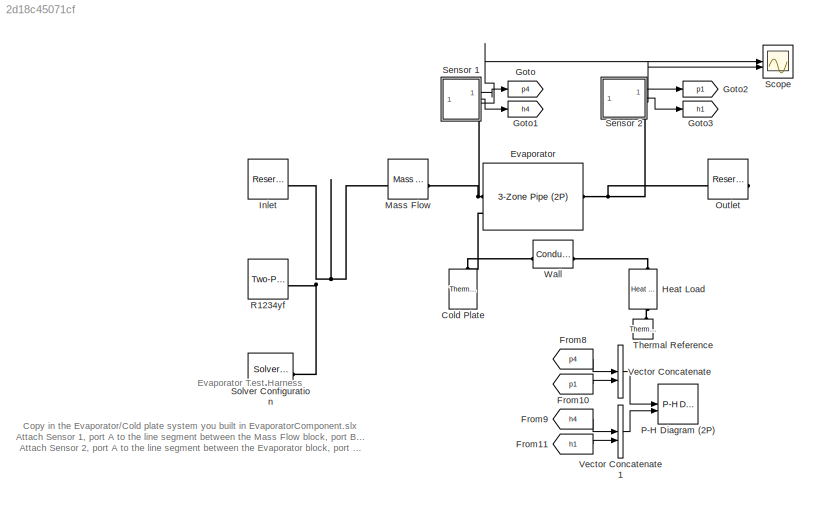
MODEL slx_2d18c45071cf
KIND model
CONFIG AbsTol = 1e-3
CONFIG EnableMultiTasking = off
CONFIG FixedStep = auto
CONFIG MaxStep = auto
CONFIG MinStep = auto
CONFIG RelTol = 1e-3
CONFIG SampleTimeConstraint = Unconstrained
CONFIG SolverName = VariableStepAuto
CONFIG StartTime = 0.0
CONFIG StopTime = 3600
WORKSPACE source: MATLAB code (in-file)
WORKSPACE code: evaporatorParams
BLOCK [Reference] Cold Plate  REF=fl_lib/Thermal/Thermal Elements/Thermal Mass
  NameLocation = right
  SourceBlock = fl_lib/Thermal/Thermal Elements/Thermal Mass
  SourceType = Thermal Mass
BLOCK [Reference] Evaporator  REF=SimscapeFluids_lib/Two-Phase Fluid/Pipes & Fittings/3-Zone Pipe (2P)
  NameLocation = top
  SourceBlock = SimscapeFluids_lib/Two-Phase Fluid/Pipes & Fittings/3-Zone Pipe (2P)
  SourceType = 3-Zone Pipe (2P)
BLOCK [From] From10
  GotoTag = p1
BLOCK [From] From11
  GotoTag = h1
BLOCK [From] From8
  GotoTag = p4
BLOCK [From] From9
  GotoTag = h4
BLOCK [Goto] Goto
  GotoTag = p4
BLOCK [Goto] Goto1
  GotoTag = h4
BLOCK [Goto] Goto2
  GotoTag = p1
BLOCK [Goto] Goto3
  GotoTag = h1
BLOCK [Reference] Heat Load  REF=fl_lib/Thermal/Thermal Sources/Heat Flow Rate
Source
  NameLocation = left
  SourceBlock = fl_lib/Thermal/Thermal Sources/Heat Flow Rate\nSource
  SourceType = Heat Flow Rate\nSource
BLOCK [Reference] Inlet  REF=fl_lib/Two-Phase Fluid/Elements/Reservoir (2P)
  SourceBlock = fl_lib/Two-Phase Fluid/Elements/Reservoir (2P)
  SourceType = Reservoir (2P)
BLOCK [Reference] Mass Flow  REF=fl_lib/Two-Phase Fluid/Sources/Mass Flow Rate
Source (2P)
  SourceBlock = fl_lib/Two-Phase Fluid/Sources/Mass Flow Rate\nSource (2P)
  SourceType = Mass Flow Rate\nSource (2P)
BLOCK [Reference] Outlet  REF=fl_lib/Two-Phase Fluid/Elements/Reservoir (2P)
  SourceBlock = fl_lib/Two-Phase Fluid/Elements/Reservoir (2P)
  SourceType = Reservoir (2P)
BLOCK [Reference] P-H Diagram (2P)  REF=SimscapeFluids_lib/Two-Phase Fluid/Utilities/P-H Diagram (2P)
  NameLocation = right
  SourceBlock = SimscapeFluids_lib/Two-Phase Fluid/Utilities/P-H Diagram (2P)
  SourceType = P-H Diagram (2P)
  UserDataPersistent = on
BLOCK [Reference] R1234yf  REF=SimscapeFluids_lib/Two-Phase Fluid/Utilities/Two-Phase Fluid
Predefined
Properties (2P)
  NameLocation = top
  SourceBlock = SimscapeFluids_lib/Two-Phase Fluid/Utilities/Two-Phase Fluid\nPredefined\nProperties (2P)
  SourceType = Two-Phase Fluid\nPredefined\nProperties (2P)
BLOCK [Scope] Scope
  Floating = off
  NumInputPorts = 2
  ScopeSpecificationString = Simulink.scopes.TimeScopeBlockCfg('CurrentConfiguration', extmgr.ConfigurationSet(extmgr.Configuration('Core','General UI',true),extmgr.Configuration('Core','Source UI',true),extmgr.Configuration('Sources','WiredSimulink',true),extmgr.Configuration('Visuals','Time Domain',true,'SerializedDisplays',{struct('MinYLimReal','263.44226','MaxYLimReal','268.81151','YLabelReal','','MinYLimMag','263.44226',...<+1355ch>
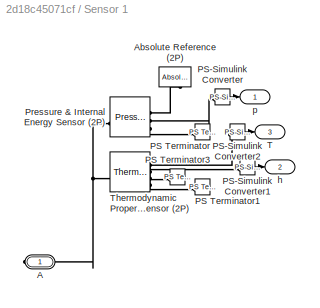
BLOCK [SubSystem] Sensor 1
  NameLocation = top
  PortSchema = {"entries":[{"content":{"sides":[{"content":{"connectorIds":[]},"type":"ConnectorPlacement.EquallySpacedRectSide","uuid":"a2386ea4-012f-4d06-9e16-de8034e56d49"},{"content":{"connectorIds":["Out1","Out2","Out3"],"side":"RIGHT"},"type":"ConnectorPlacement.EquallySpacedRectSide","uuid":"4fc9eed4-9b91-4b18-836c-5d3d8d2a2391"},{"content":{"connectorIds":[],"side":"TOP"},"type":"ConnectorPlacement.Equal...<+401ch>
BLOCK [PMIOPort] Sensor 1/A
  Side = Right
BLOCK [Reference] Sensor 1/Absolute Reference (2P)  REF=fl_lib/Two-Phase Fluid/Elements/Absolute Reference
(2P)
  NameLocation = left
  SourceBlock = fl_lib/Two-Phase Fluid/Elements/Absolute Reference\n(2P)
  SourceType = Absolute Reference\n(2P)
BLOCK [Reference] Sensor 1/PS Terminator  REF=fl_lib/Physical Signals/Sinks/PS Terminator
  SourceBlock = fl_lib/Physical Signals/Sinks/PS Terminator
  SourceType = PS Terminator
BLOCK [Reference] Sensor 1/PS Terminator1  REF=fl_lib/Physical Signals/Sinks/PS Terminator
  SourceBlock = fl_lib/Physical Signals/Sinks/PS Terminator
  SourceType = PS Terminator
BLOCK [Reference] Sensor 1/PS Terminator3  REF=fl_lib/Physical Signals/Sinks/PS Terminator
  SourceBlock = fl_lib/Physical Signals/Sinks/PS Terminator
  SourceType = PS Terminator
BLOCK [Reference] Sensor 1/PS-Simulink Converter  REF=nesl_utility/PS-Simulink
Converter
  SourceBlock = nesl_utility/PS-Simulink\nConverter
  SourceType = PS-Simulink\nConverter
BLOCK [Reference] Sensor 1/PS-Simulink Converter1  REF=nesl_utility/PS-Simulink
Converter
  SourceBlock = nesl_utility/PS-Simulink\nConverter
  SourceType = PS-Simulink\nConverter
BLOCK [Reference] Sensor 1/PS-Simulink Converter2  REF=nesl_utility/PS-Simulink
Converter
  SourceBlock = nesl_utility/PS-Simulink\nConverter
  SourceType = PS-Simulink\nConverter
BLOCK [Reference] Sensor 1/Pressure & Internal Energy Sensor (2P)  REF=fl_lib/Two-Phase Fluid/Sensors/Pressure,
Temperature &
Internal Energy
Sensor (2P)
  SourceBlock = fl_lib/Two-Phase Fluid/Sensors/Pressure,\nTemperature &\nInternal Energy\nSensor (2P)
  SourceType = Pressure,\nTemperature &\nInternal Energy\nSensor (2P)
BLOCK [Outport] Sensor 1/T
  Port = 3
BLOCK [Reference] Sensor 1/Thermodynamic Properties Sensor (2P)  REF=fl_lib/Two-Phase Fluid/Sensors/Thermodynamic
Properties Sensor
(2P)
  SourceBlock = fl_lib/Two-Phase Fluid/Sensors/Thermodynamic\nProperties Sensor\n(2P)
  SourceType = Thermodynamic\nProperties Sensor\n(2P)
BLOCK [Outport] Sensor 1/h
  Port = 2
BLOCK [Outport] Sensor 1/p
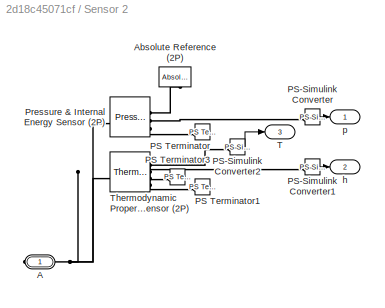
BLOCK [SubSystem] Sensor 2
  NameLocation = top
  PortSchema = {"entries":[{"content":{"sides":[{"content":{"connectorIds":[]},"type":"ConnectorPlacement.EquallySpacedRectSide","uuid":"09a2fde7-9514-415f-ad1a-2358fbc90122"},{"content":{"connectorIds":["Out1","Out2","Out3"],"side":"RIGHT"},"type":"ConnectorPlacement.EquallySpacedRectSide","uuid":"1a58e595-65c2-481f-a4c6-044a1080df7a"},{"content":{"connectorIds":[],"side":"TOP"},"type":"ConnectorPlacement.Equal...<+401ch>
BLOCK [PMIOPort] Sensor 2/A
  Side = Right
BLOCK [Reference] Sensor 2/Absolute Reference (2P)  REF=fl_lib/Two-Phase Fluid/Elements/Absolute Reference
(2P)
  NameLocation = left
  SourceBlock = fl_lib/Two-Phase Fluid/Elements/Absolute Reference\n(2P)
  SourceType = Absolute Reference\n(2P)
BLOCK [Reference] Sensor 2/PS Terminator  REF=fl_lib/Physical Signals/Sinks/PS Terminator
  SourceBlock = fl_lib/Physical Signals/Sinks/PS Terminator
  SourceType = PS Terminator
BLOCK [Reference] Sensor 2/PS Terminator1  REF=fl_lib/Physical Signals/Sinks/PS Terminator
  SourceBlock = fl_lib/Physical Signals/Sinks/PS Terminator
  SourceType = PS Terminator
BLOCK [Reference] Sensor 2/PS Terminator3  REF=fl_lib/Physical Signals/Sinks/PS Terminator
  SourceBlock = fl_lib/Physical Signals/Sinks/PS Terminator
  SourceType = PS Terminator
BLOCK [Reference] Sensor 2/PS-Simulink Converter  REF=nesl_utility/PS-Simulink
Converter
  SourceBlock = nesl_utility/PS-Simulink\nConverter
  SourceType = PS-Simulink\nConverter
BLOCK [Reference] Sensor 2/PS-Simulink Converter1  REF=nesl_utility/PS-Simulink
Converter
  SourceBlock = nesl_utility/PS-Simulink\nConverter
  SourceType = PS-Simulink\nConverter
BLOCK [Reference] Sensor 2/PS-Simulink Converter2  REF=nesl_utility/PS-Simulink
Converter
  SourceBlock = nesl_utility/PS-Simulink\nConverter
  SourceType = PS-Simulink\nConverter
BLOCK [Reference] Sensor 2/Pressure & Internal Energy Sensor (2P)  REF=fl_lib/Two-Phase Fluid/Sensors/Pressure,
Temperature &
Internal Energy
Sensor (2P)
  SourceBlock = fl_lib/Two-Phase Fluid/Sensors/Pressure,\nTemperature &\nInternal Energy\nSensor (2P)
  SourceType = Pressure,\nTemperature &\nInternal Energy\nSensor (2P)
BLOCK [Outport] Sensor 2/T
  Port = 3
BLOCK [Reference] Sensor 2/Thermodynamic Properties Sensor (2P)  REF=fl_lib/Two-Phase Fluid/Sensors/Thermodynamic
Properties Sensor
(2P)
  SourceBlock = fl_lib/Two-Phase Fluid/Sensors/Thermodynamic\nProperties Sensor\n(2P)
  SourceType = Thermodynamic\nProperties Sensor\n(2P)
BLOCK [Outport] Sensor 2/h
  Port = 2
BLOCK [Outport] Sensor 2/p
BLOCK [Reference] Solver Configuration  REF=nesl_utility/Solver
Configuration
  NameLocation = top
  SourceBlock = nesl_utility/Solver\nConfiguration
  SourceType = Solver\nConfiguration
BLOCK [Reference] Thermal Reference  REF=fl_lib/Thermal/Thermal Elements/Thermal Reference
  NameLocation = right
  SourceBlock = fl_lib/Thermal/Thermal Elements/Thermal Reference
  SourceType = Thermal Reference
BLOCK [Concatenate] Vector Concatenate
BLOCK [Concatenate] Vector Concatenate1
BLOCK [Reference] Wall  REF=fl_lib/Thermal/Thermal Elements/Conductive Heat
Transfer
  SourceBlock = fl_lib/Thermal/Thermal Elements/Conductive Heat\nTransfer
  SourceType = Conductive Heat\nTransfer
ANNOTATION (root): Copy in the Evaporator/Cold plate system you built in EvaporatorComponent.slx Attach Sensor 1, port A to the line segment between the Mass Flow block, port B, and the Evaporator block, port A Attach Sensor 2, port A to the line segment between the Evaporator block, port B, and the Outlet
ANNOTATION (root): Evaporator Test Harness
LINE From10:1 -> Vector Concatenate:2
LINE From11:1 -> Vector Concatenate1:2
LINE From8:1 -> Vector Concatenate:1
LINE From9:1 -> Vector Concatenate1:1
LINE Sensor 1/PS-Simulink Converter1:1 -> Sensor 1/h:1
LINE Sensor 1/PS-Simulink Converter2:1 -> Sensor 1/T:1
LINE Sensor 1/PS-Simulink Converter:1 -> Sensor 1/p:1
LINE Sensor 1:1 -> Goto:1
LINE Sensor 1:2 -> Goto1:1
LINE Sensor 1:3 -> Scope:1
LINE Sensor 2/PS-Simulink Converter1:1 -> Sensor 2/h:1
LINE Sensor 2/PS-Simulink Converter2:1 -> Sensor 2/T:1
LINE Sensor 2/PS-Simulink Converter:1 -> Sensor 2/p:1
LINE Sensor 2:1 -> Goto2:1
LINE Sensor 2:2 -> Goto3:1
LINE Sensor 2:3 -> Scope:2
LINE Vector Concatenate1:1 -> P-H Diagram (2P):2
LINE Vector Concatenate:1 -> P-H Diagram (2P):1
PNET net1: Cold Plate:LConn1 -- Evaporator:LConn2 -- Wall:LConn1
PNET net2: Evaporator:LConn1 -- Mass Flow:RConn1 -- Sensor 1:RConn1
PNET net3: Evaporator:RConn1 -- Outlet:LConn1 -- Sensor 2:RConn1
PLINE Heat Load:LConn1 -- Wall:RConn1
PLINE Heat Load:RConn1 -- Thermal Reference:LConn1
PNET net4: Inlet:LConn1 -- Mass Flow:LConn1 -- R1234yf:RConn1 -- Solver Configuration:RConn1
PNET net5: Sensor 1/A:RConn1 -- Sensor 1/Pressure & Internal Energy Sensor (2P):LConn1 -- Sensor 1/Thermodynamic Properties Sensor (2P):LConn1
PLINE Sensor 1/Absolute Reference (2P):LConn1 -- Sensor 1/Pressure & Internal Energy Sensor (2P):RConn1
PLINE Sensor 1/PS Terminator1:LConn1 -- Sensor 1/Thermodynamic Properties Sensor (2P):RConn4
PLINE Sensor 1/PS Terminator3:LConn1 -- Sensor 1/Thermodynamic Properties Sensor (2P):RConn3
PLINE Sensor 1/PS Terminator:LConn1 -- Sensor 1/Pressure & Internal Energy Sensor (2P):RConn3
PLINE Sensor 1/PS-Simulink Converter1:LConn1 -- Sensor 1/Thermodynamic Properties Sensor (2P):RConn2
PLINE Sensor 1/PS-Simulink Converter2:LConn1 -- Sensor 1/Thermodynamic Properties Sensor (2P):RConn1
PLINE Sensor 1/PS-Simulink Converter:LConn1 -- Sensor 1/Pressure & Internal Energy Sensor (2P):RConn2
PNET net6: Sensor 2/A:RConn1 -- Sensor 2/Pressure & Internal Energy Sensor (2P):LConn1 -- Sensor 2/Thermodynamic Properties Sensor (2P):LConn1
PLINE Sensor 2/Absolute Reference (2P):LConn1 -- Sensor 2/Pressure & Internal Energy Sensor (2P):RConn1
PLINE Sensor 2/PS Terminator1:LConn1 -- Sensor 2/Thermodynamic Properties Sensor (2P):RConn4
PLINE Sensor 2/PS Terminator3:LConn1 -- Sensor 2/Thermodynamic Properties Sensor (2P):RConn3
PLINE Sensor 2/PS Terminator:LConn1 -- Sensor 2/Pressure & Internal Energy Sensor (2P):RConn3
PLINE Sensor 2/PS-Simulink Converter1:LConn1 -- Sensor 2/Thermodynamic Properties Sensor (2P):RConn2
PLINE Sensor 2/PS-Simulink Converter2:LConn1 -- Sensor 2/Thermodynamic Properties Sensor (2P):RConn1
PLINE Sensor 2/PS-Simulink Converter:LConn1 -- Sensor 2/Pressure & Internal Energy Sensor (2P):RConn2
note: PNET lines group multi-terminal physical nets as a canonical sorted terminal list (undirected conserving connections); 2-terminal nets keep the pairwise PLINE form
